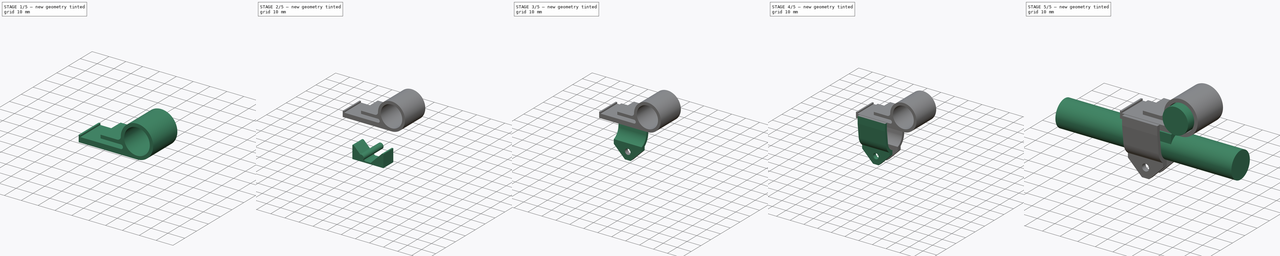
[diagram: build sequence overview — one tinted view per stage of 5, left to right]
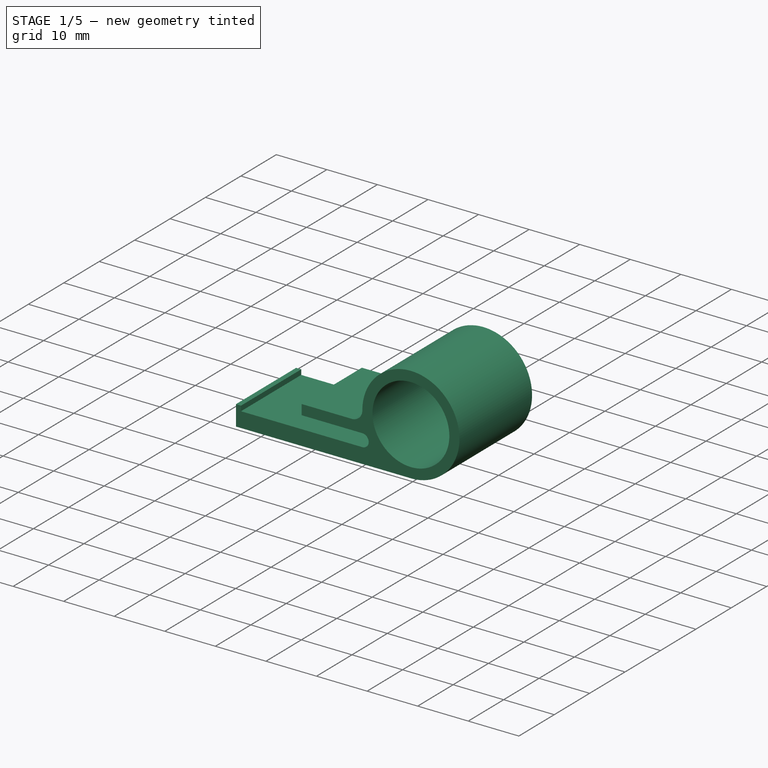
[diagram: stage 1 of 5 — iso view after this stage's code; geometry added in this stage tinted green]
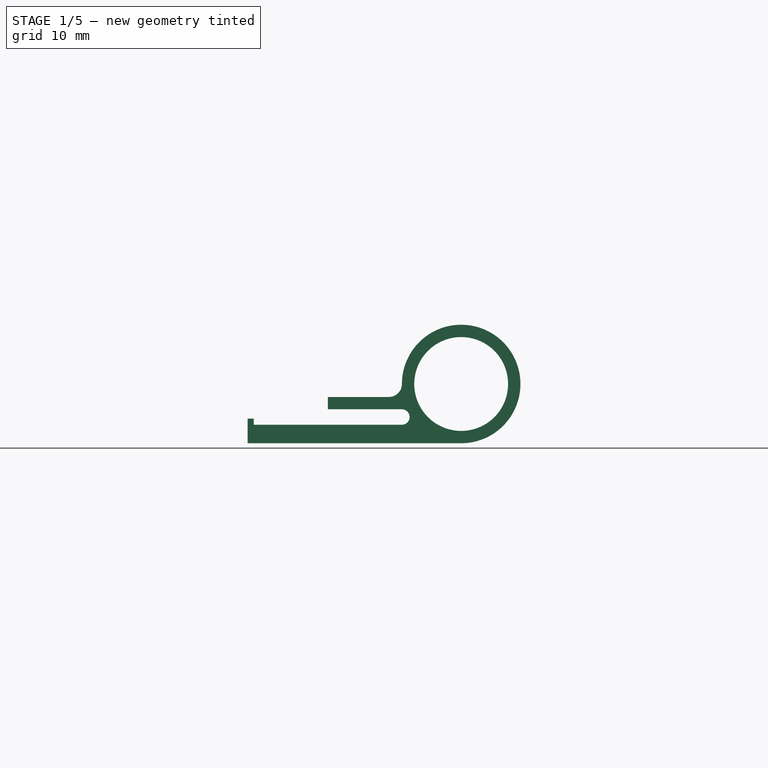
[diagram: stage 1 of 5 — front view after this stage's code; geometry added in this stage tinted green]
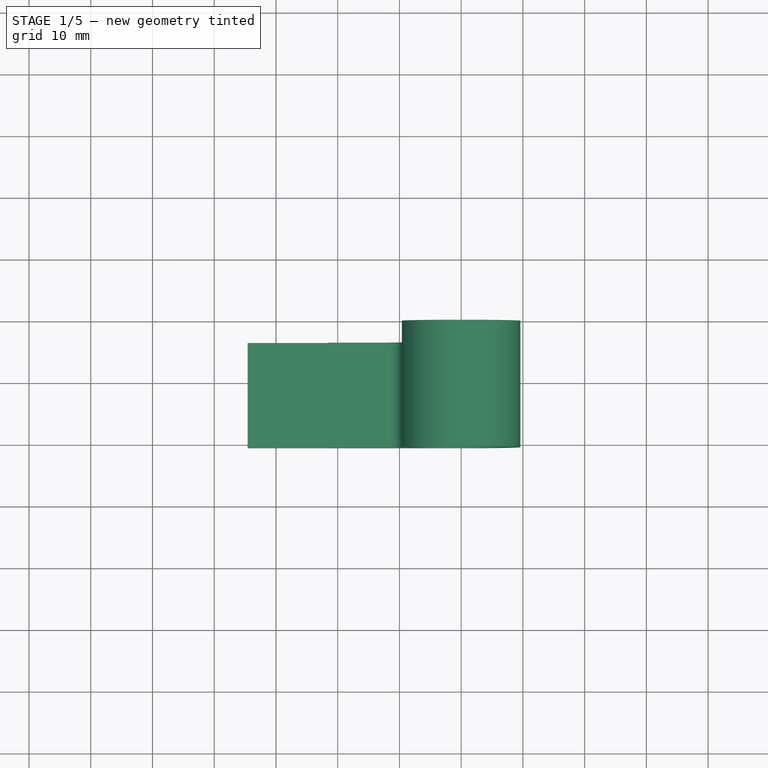
[diagram: stage 1 of 5 — top view after this stage's code; geometry added in this stage tinted green]
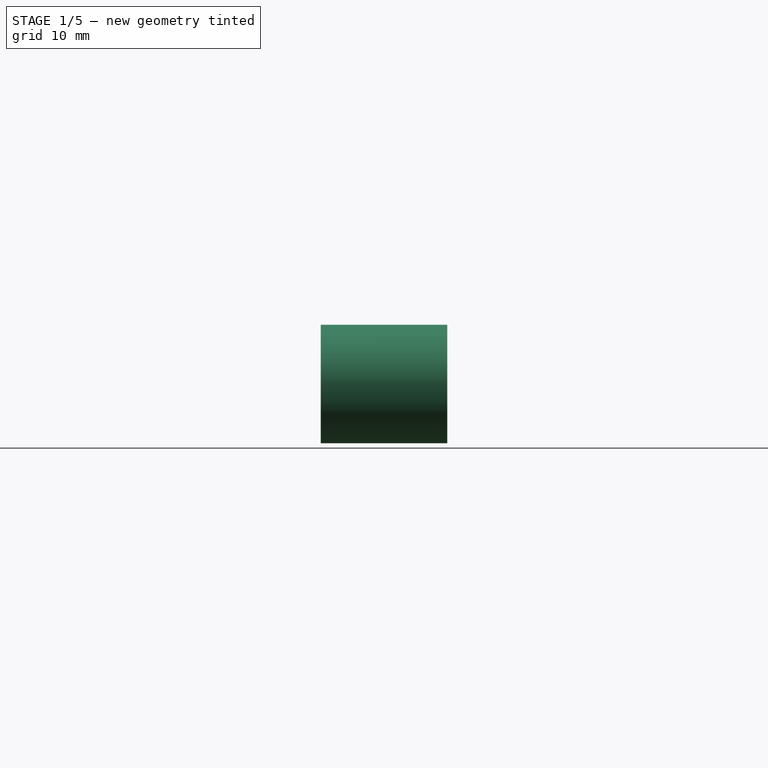
[diagram: stage 1 of 5 — right view after this stage's code; geometry added in this stage tinted green]
FCSTD DOCUMENT  (FreeCAD 0.19R24291 (Git))
Label: cam_bearing2
License: All rights reserved
LicenseURL: http://en.wikipedia.org/wiki/All_rights_reserved
objects: Sketcher::SketchObject×6, Part::Extrusion×6, Part::Cylinder×4, Part::Cut×2, Part::Compound×2, Part::Thickness×1, Part::MultiFuse×1, PartDesign::FeatureBase×1, PartDesign::Body×1, Part::Mirroring×1, Spreadsheet::Sheet×1
note: 25 computed .brp shape members not serialized (recipe doc carries the construction recipe); baked Part::Feature solids carry a one-line shape summary decoded from their .brp

FEATURE [Sketcher::SketchObject] Sketch001
  FullyConstrained = true
  Placement = pos=(0,-25,0) rot=(1,0,0;1.5708rad)
  expr: Constraints[38] = Spreadsheet.thickness
  expr: Constraints[37] = Spreadsheet.thickness
  expr: Constraints[9] = Spreadsheet.bearing_r
  sketch-geometry (13):
    g0: ArcOfCircle CenterX=0 CenterY=0 CenterZ=0 NormalX=0 NormalY=0 NormalZ=1 AngleXU=0 Radius=7.6 StartAngle=3.14159 EndAngle=4.71239
    g1: LineSegment StartX=-1.4e-15 StartY=-7.6 StartZ=0 EndX=-1.4e-15 EndY=-9.6 EndZ=0
    g2: LineSegment StartX=-1.4e-15 StartY=-9.6 StartZ=0 EndX=-34.6 EndY=-9.6 EndZ=0
    g3: LineSegment StartX=-34.6 StartY=-9.6 StartZ=0 EndX=-34.6 EndY=-5.6 EndZ=0
    g4: LineSegment StartX=-33.6 StartY=-6.6 StartZ=0 EndX=-33.6 EndY=-5.6 EndZ=0
    g5: LineSegment StartX=-33.6 StartY=-5.6 StartZ=0 EndX=-34.6 EndY=-5.6 EndZ=0
    g6: LineSegment StartX=-33.6 StartY=-6.6 StartZ=0 EndX=-9.6 EndY=-6.6 EndZ=0
    g7: ArcOfCircle CenterX=-9.6 CenterY=-5.35 CenterZ=0 NormalX=0 NormalY=0 NormalZ=1 AngleXU=0 Radius=1.25 StartAngle=4.71239 EndAngle=7.85398
    g8: LineSegment StartX=-9.6 StartY=-4.1 StartZ=0 EndX=-21.6 EndY=-4.1 EndZ=0
    g9: LineSegment StartX=-21.6 StartY=-4.1 StartZ=0 EndX=-21.6 EndY=-2.1 EndZ=0
    g10: LineSegment StartX=-21.6 StartY=-2.1 StartZ=0 EndX=-11.7 EndY=-2.1 EndZ=0
    g11: ArcOfCircle CenterX=-11.7 CenterY=0 CenterZ=0 NormalX=0 NormalY=0 NormalZ=1 AngleXU=0 Radius=2.1 StartAngle=4.71239 EndAngle=6.28319
    g12: LineSegment StartX=-9.6 StartY=-5e-16 StartZ=0 EndX=-7.6 EndY=-5e-16 EndZ=0
  constraints (41):
    c: Coincident(g0,g-1)
    c: PointOnObject(g0,g-2)
    c: Vertical(g1)
    c: Coincident(g2,g1)
    c: Horizontal(g2)
    c: Coincident(g3,g2)
    c: Vertical(g3)
    c: DistanceY(g3,g2) = -4
    c: Coincident(g0,g1)
    c: Radius(g0) = 7.6
    c: Horizontal(g6)
    c: Coincident(g4,g5)
    c: Coincident(g5,g3)
    c: Horizontal(g5)
    c: Coincident(g4,g6)
    c: DistanceY(g4,g4) = 1
    c: DistanceX(g3,g4) = 1
    c: Vertical(g4,g4)
    c: Coincident(g7,g6)
    c: Horizontal(g8)
    c: Coincident(g9,g8)
    c: Vertical(g9)
    c: DistanceY(g8,g9) = 2
    c: DistanceY(g6,g8) = 2.5
    c: Coincident(g8,g7)
    c: Coincident(g10,g9)
    c: Horizontal(g10)
    c: Vertical(g7,g7)
    c: Vertical(g7,g6)
    c: PointOnObject(g11,g-1)
    c: PointOnObject(g11,g-1)
    c: Coincident(g10,g11)
    c: Coincident(g12,g11)
    c: Coincident(g12,g0)
    c: Horizontal(g12)
    c: DistanceX(g8,g8) = 12
    c: Vertical(g10,g11)
    c: DistanceX(g12,g12) = 2
    c: DistanceY(g1,g1) = 2
    c: Vertical(g7,g11)
    c: DistanceX(g4,g7) = 24
FEATURE [Part::Extrusion] Extrude
  Base = -> Sketch001
  Dir = (0,-1,2e-16)
  DirMode = 2
  FaceMakerClass = Part::FaceMakerBullseye
  LengthFwd = 0
  LengthRev = 17
  Placement = pos=(0,4.5,0) rot=(0,0,1;0rad)
  Solid = true
  Symmetric = false
FEATURE [Sketcher::SketchObject] Sketch020
  FullyConstrained = true
  Placement = pos=(-6,0,0) rot=(0.57735,-0.57735,-0.57735;2.0944rad)
  sketch-geometry (4):
    g0: LineSegment StartX=19.5 StartY=-10.1 StartZ=0 EndX=19.5 EndY=-9.1 EndZ=0
    g1: LineSegment StartX=19.5 StartY=-9.1 StartZ=0 EndX=5 EndY=-9.1 EndZ=0
    g2: LineSegment StartX=5 StartY=-9.1 StartZ=0 EndX=4 EndY=-10.1 EndZ=0
    g3: LineSegment StartX=4 StartY=-10.1 StartZ=0 EndX=19.5 EndY=-10.1 EndZ=0
  constraints (12):
    c: Coincident(g0,g1)
    c: Horizontal(g1)
    c: Coincident(g1,g2)
    c: Coincident(g2,g3)
    c: Coincident(g3,g0)
    c: Horizontal(g3)
    c: DistanceY(g0,g0) = -1
    c: DistanceX(g2,g1) = 1
    c: Vertical(g0)
    c: DistanceX(g1,g1) = 14.5
    c: DistanceX(g0) = 19.5
    c: DistanceY(g1) = -9.1
FEATURE [Part::Extrusion] Extrude015
  Base = -> Sketch020
  Dir = (-1,0,0)
  DirMode = 2
  FaceMakerClass = Part::FaceMakerBullseye
  LengthFwd = 27.5
  LengthRev = 0
  Solid = true
  Symmetric = false
FEATURE [Part::Cut] Cut006
  Base = -> Extrude
  Tool = -> Extrude015
FEATURE [Spreadsheet::Sheet] Spreadsheet
  cells = A1=cf_radius; B1(cf_radius)=7.25; A2=bearing_r; B2(bearing_r)=7.6; C2=8.6; A3=thickness; B3(thickness)=2
FEATURE [Sketcher::SketchObject] Sketch
  FullyConstrained = true
  Placement = pos=(0,0,0) rot=(-1,0,0;4.71239rad)
  expr: Constraints[3] = Spreadsheet.bearing_r + Spreadsheet.thickness
  expr: Constraints[2] = Spreadsheet.bearing_r
  sketch-geometry (2):
    g0: Circle CenterX=0 CenterY=0 CenterZ=0 NormalX=0 NormalY=0 NormalZ=1 AngleXU=0 Radius=7.6
    g1: Circle CenterX=0 CenterY=0 CenterZ=0 NormalX=0 NormalY=0 NormalZ=1 AngleXU=0 Radius=9.6
  constraints (4):
    c: Coincident(g0,g-1)
    c: Coincident(g1,g0)
    c: Radius(g0) = 7.6
    c: Radius(g1) = 9.6
FEATURE [Part::Extrusion] Extrude016
  Base = -> Sketch
  Dir = (0,-1,3e-16)
  DirMode = 2
  FaceMakerClass = Part::FaceMakerBullseye
  LengthFwd = 20.5
  LengthRev = 0
  Solid = true
  Symmetric = false
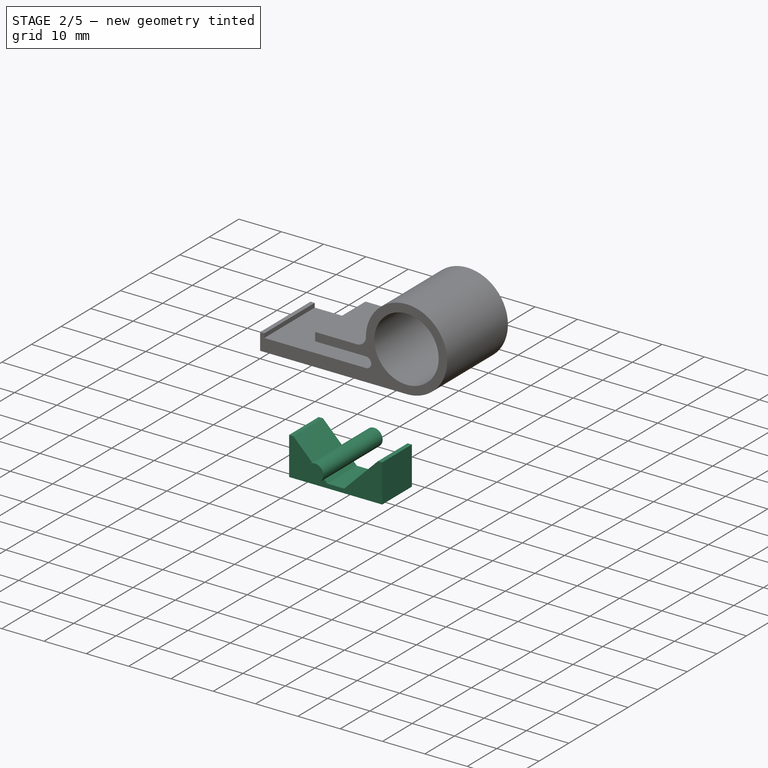
[diagram: stage 2 of 5 — iso view after this stage's code; geometry added in this stage tinted green]
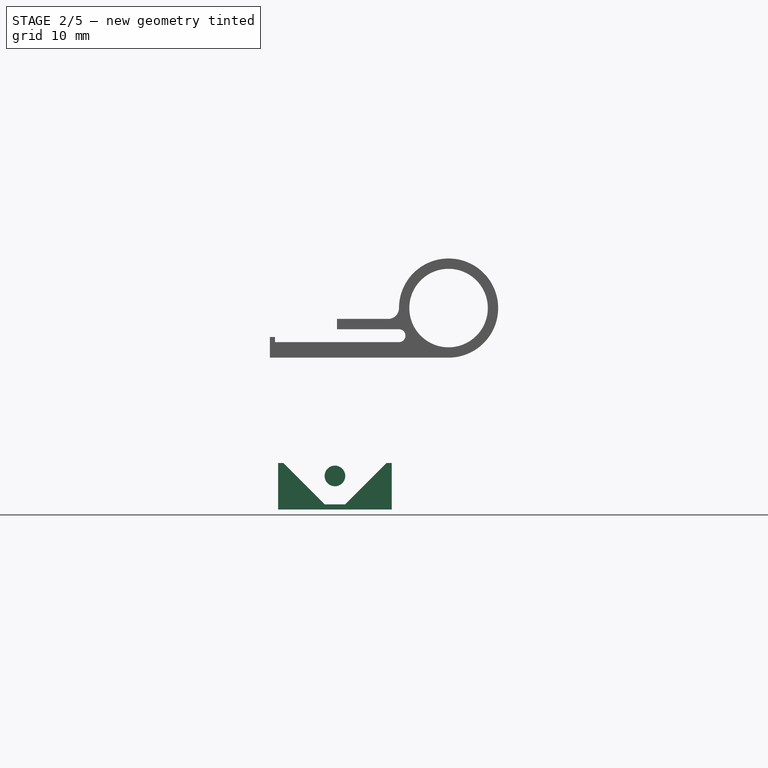
[diagram: stage 2 of 5 — front view after this stage's code; geometry added in this stage tinted green]
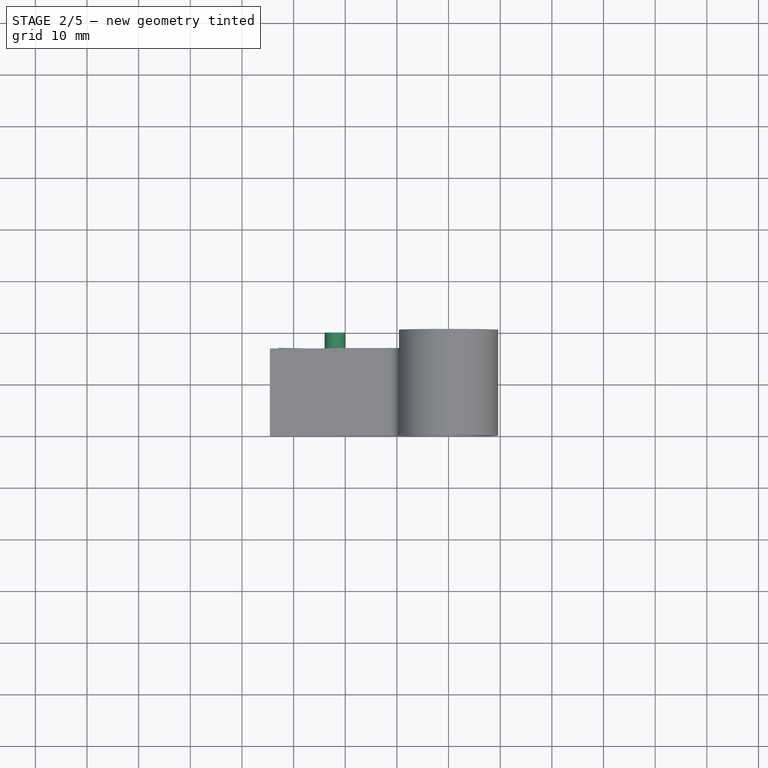
[diagram: stage 2 of 5 — top view after this stage's code; geometry added in this stage tinted green]
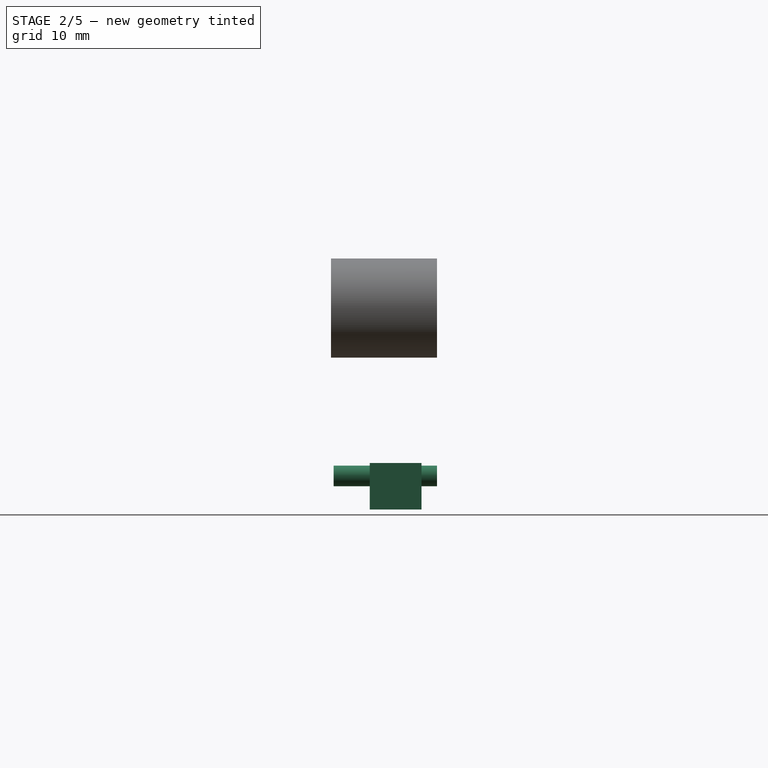
[diagram: stage 2 of 5 — right view after this stage's code; geometry added in this stage tinted green]
FEATURE [Part::Cylinder] Cylinder024  label="bolt"
  Angle = 360
  AttacherType = Attacher::AttachEngine3D
  Height = 20
  Placement = pos=(-22,0,-32.5) rot=(1,0,0;1.5708rad)
  Radius = 2
FEATURE [Sketcher::SketchObject] Sketch006
  FullyConstrained = false
  Placement = pos=(0,20,0) rot=(0,0.707107,0.707107;3.14159rad)
  sketch-geometry (8):
    g0: LineSegment StartX=24 StartY=-38 StartZ=0 EndX=32 EndY=-30 EndZ=0
    g1: LineSegment StartX=32 StartY=-30 StartZ=0 EndX=33 EndY=-30 EndZ=0
    g2: LineSegment StartX=33 StartY=-30 StartZ=0 EndX=33 EndY=-39 EndZ=0
    g3: LineSegment StartX=33 StartY=-39 StartZ=0 EndX=11 EndY=-39 EndZ=0
    g4: LineSegment StartX=11 StartY=-39 StartZ=0 EndX=11 EndY=-30 EndZ=0
    g5: LineSegment StartX=11 StartY=-30 StartZ=0 EndX=12 EndY=-30 EndZ=0
    g6: LineSegment StartX=12 StartY=-30 StartZ=0 EndX=20 EndY=-38 EndZ=0
    g7: LineSegment StartX=20 StartY=-38 StartZ=0 EndX=24 EndY=-38 EndZ=0
  constraints (24):
    c: Coincident(g0,g1)
    c: Horizontal(g1)
    c: Coincident(g1,g2)
    c: Vertical(g2)
    c: Coincident(g2,g3)
    c: Horizontal(g3)
    c: Coincident(g3,g4)
    c: Vertical(g4)
    c: Coincident(g4,g5)
    c: Horizontal(g5)
    c: Coincident(g5,g6)
    c: Coincident(g6,g7)
    c: Coincident(g7,g0)
    c: Horizontal(g7)
    c: DistanceX(g0,g0) = 8
    c: DistanceY(g0,g0) = 8
    c: DistanceX(g1) = 33
    c: DistanceY(g1) = -30
    c: DistanceX(g2,g3) = -22
    c: DistanceY(g3,g4) = 9
    c: DistanceX(g4,g5) = 1
    c: DistanceX(g0,g1) = 1
    c: DistanceX(g6,g0) = 4
    c: DistanceY(g6,g5) = 8
FEATURE [Part::Extrusion] Extrude004
  Base = -> Sketch006
  Dir = (1e-16,1,0)
  DirMode = 2
  FaceMakerClass = Part::FaceMakerBullseye
  LengthFwd = 0
  LengthRev = 10
  Placement = pos=(0,-23,0) rot=(0,0,1;0rad)
  Solid = true
  Symmetric = false
FEATURE [Part::Compound] Compound004  label="bearing outer001"
  Links = -> [Cut006,Extrude016]
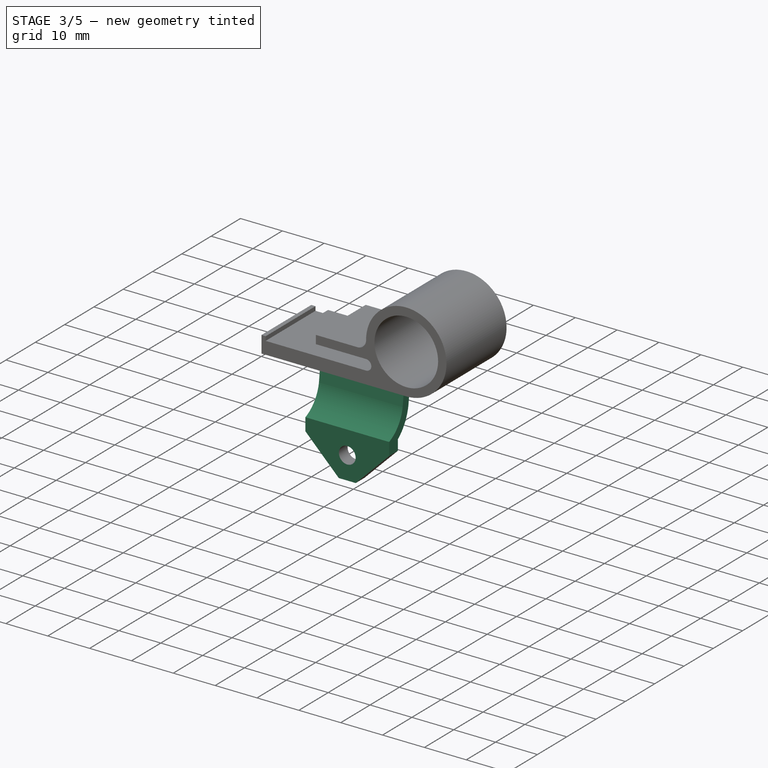
[diagram: stage 3 of 5 — iso view after this stage's code; geometry added in this stage tinted green]
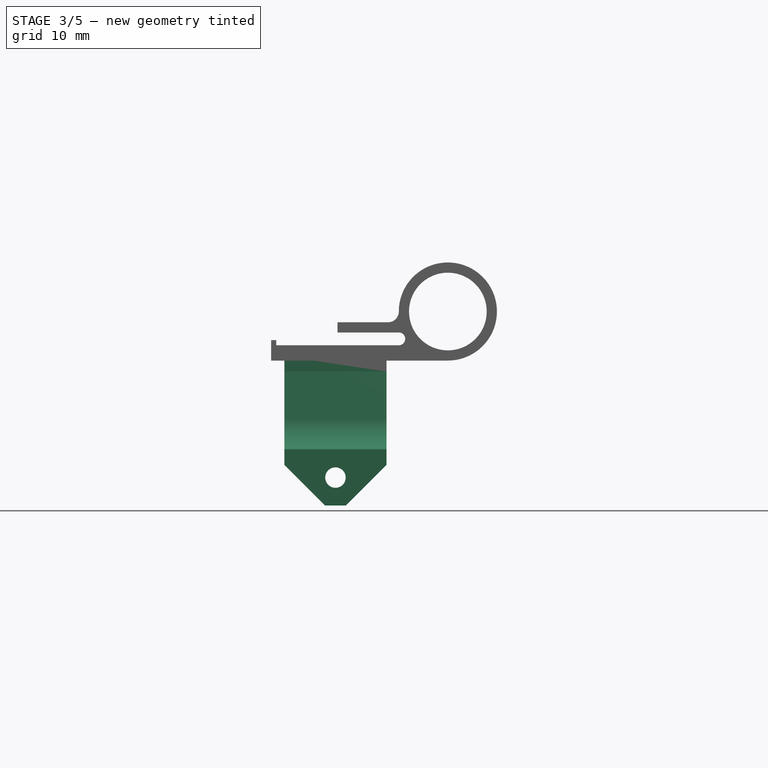
[diagram: stage 3 of 5 — front view after this stage's code; geometry added in this stage tinted green]
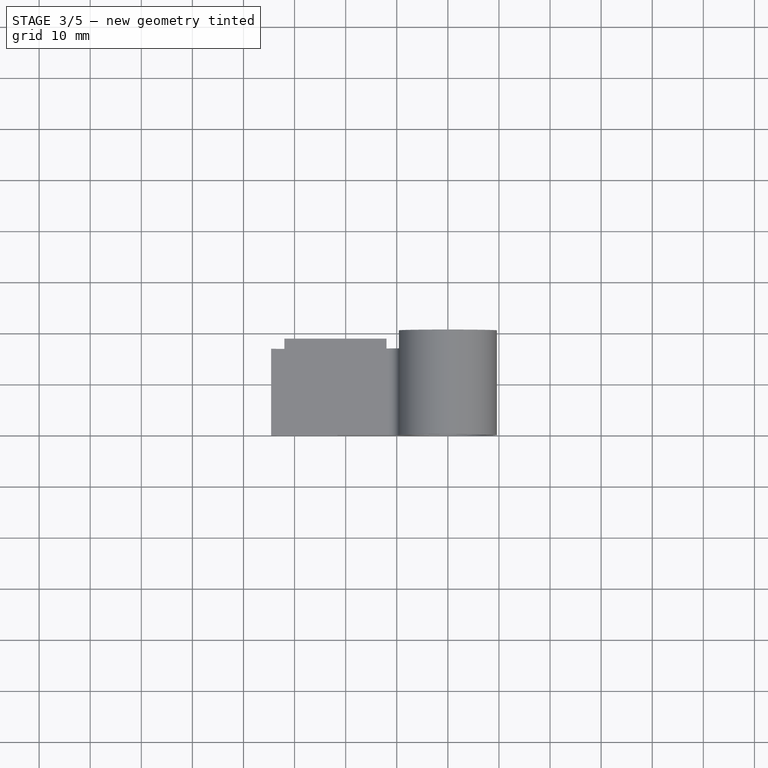
[diagram: stage 3 of 5 — top view after this stage's code; geometry added in this stage tinted green]
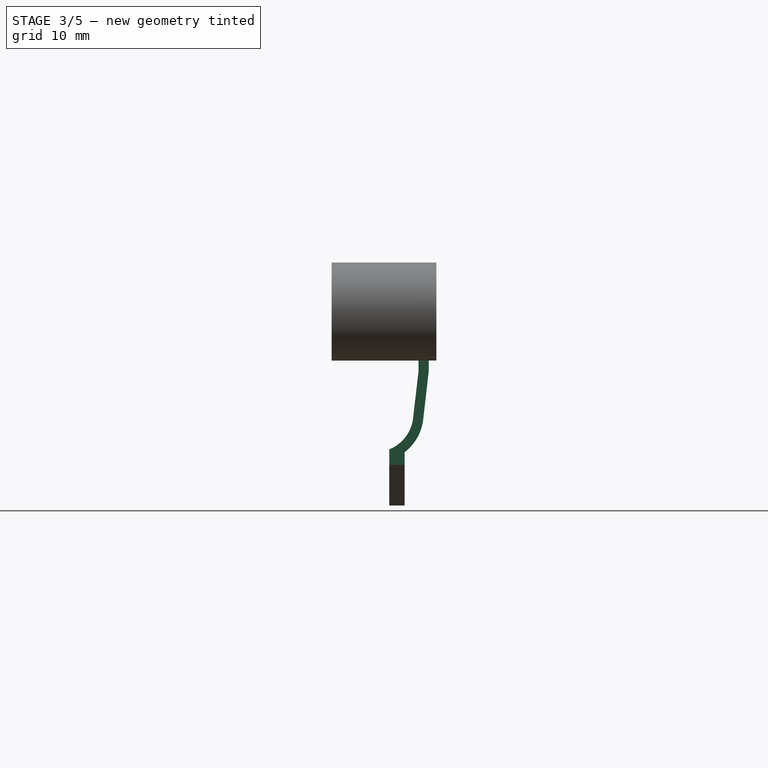
[diagram: stage 3 of 5 — right view after this stage's code; geometry added in this stage tinted green]
FEATURE [Sketcher::SketchObject] Sketch005
  FullyConstrained = false
  Placement = pos=(-80,0,0) rot=(0.57735,-0.57735,-0.57735;2.0944rad)
  sketch-geometry (12):
    g0: LineSegment StartX=9.22206 StartY=-26.9666 StartZ=0 EndX=9.22206 EndY=-37.9666 EndZ=0
    g1: LineSegment StartX=9.22206 StartY=-37.9666 StartZ=0 EndX=6.22206 EndY=-37.9666 EndZ=0
    g2: LineSegment StartX=6.22206 StartY=-37.9666 StartZ=0 EndX=6.22206 EndY=-27.5409 EndZ=0
    g3: LineSegment StartX=12 StartY=-8.75 StartZ=0 EndX=3.5 EndY=-8.75 EndZ=0
    g4: LineSegment StartX=3.5 StartY=-8.75 StartZ=0 EndX=3.5 EndY=-11.75 EndZ=0
    g5: LineSegment StartX=3.5 StartY=-11.75 StartZ=0 EndX=4.6021 EndY=-21.2333 EndZ=0
    g6: LineSegment StartX=12 StartY=-8.75 StartZ=0 EndX=12 EndY=-6.75 EndZ=0
    g7: LineSegment StartX=12 StartY=-6.75 StartZ=0 EndX=1.5 EndY=-6.75 EndZ=0
    g8: ArcOfCircle CenterX=12 CenterY=-20 CenterZ=0 NormalX=0 NormalY=0 NormalZ=1 AngleXU=0 Radius=7.5 StartAngle=3.30678 EndAngle=4.33296
    g9: LineSegment StartX=1.5 StartY=-6.75 StartZ=0 EndX=1.5 EndY=-11.75 EndZ=0
    g10: LineSegment StartX=1.5 StartY=-11.75 StartZ=0 EndX=2.62933 EndY=-21.5622 EndZ=0
    g11: ArcOfCircle CenterX=12 CenterY=-20 CenterZ=0 NormalX=0 NormalY=0 NormalZ=1 AngleXU=0 Radius=9.5 StartAngle=3.30679 EndAngle=4.05859
  constraints (36):
    c: Vertical(g0)
    c: Coincident(g0,g1)
    c: Horizontal(g1)
    c: Coincident(g1,g2)
    c: Vertical(g2)
    c: Horizontal(g3)
    c: Coincident(g3,g4)
    c: Vertical(g4)
    c: Coincident(g4,g5)
    c: Coincident(g3,g6)
    c: Vertical(g6)
    c: Coincident(g7,g6)
    c: DistanceY(g3,g6) = 2
    c: Horizontal(g7,g6)
    c: DistanceX(g7,g3) = 2
    c: DistanceY(g4,g3) = 3
    c: Coincident(g8,g0)
    c: Coincident(g8,g5)
    c: Radius(g8) = 7.5
    c: DistanceX(g2,g0) = 3
    c: Coincident(g9,g7)
    c: Vertical(g9)
    c: Distance(g4,g9) = 2
    c: Coincident(g10,g9)
    c: Distance(g10,g5) = 2
    c: Coincident(g11,g8)
    c: Coincident(g11,g10)
    c: Coincident(g11,g2)
    c: Radius(g11) = 9.5
    c: DistanceX(g8,g-1) = -12
    c: DistanceY(g8,g-1) = 20
    c: DistanceY(g0,g0) = 11
    c: DistanceX(g5,g8) = 7.3979
    c: DistanceX(g3,g3) = 8.5
    c: DistanceX(g7,g-1) = -1.5
    c: DistanceY(g7,g-1) = 6.75
FEATURE [Part::Extrusion] Extrude003
  Base = -> Sketch005
  Dir = (-1,0,0)
  DirMode = 2
  FaceMakerClass = Part::FaceMakerBullseye
  LengthFwd = 0
  LengthRev = 20
  Placement = pos=(48,0,0) rot=(0,0,1;0rad)
  Solid = true
  Symmetric = false
FEATURE [Part::MultiFuse] Fusion005
  Shapes = -> [Cylinder024,Extrude004]
FEATURE [Part::Cut] Cut004
  Base = -> Extrude003
  Tool = -> Fusion005
FEATURE [PartDesign::FeatureBase] Clone001
  BaseFeature = -> Cut004
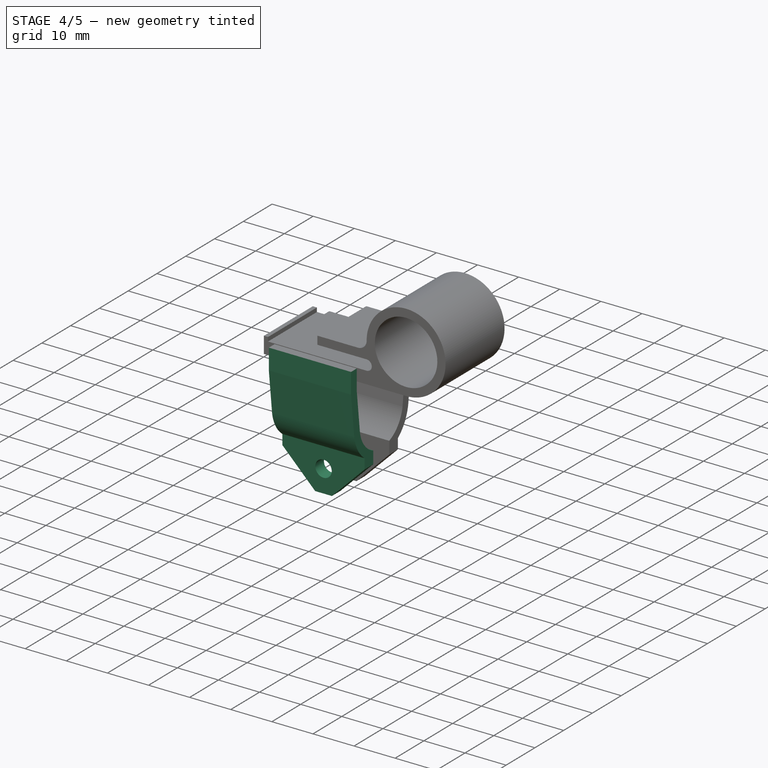
[diagram: stage 4 of 5 — iso view after this stage's code; geometry added in this stage tinted green]
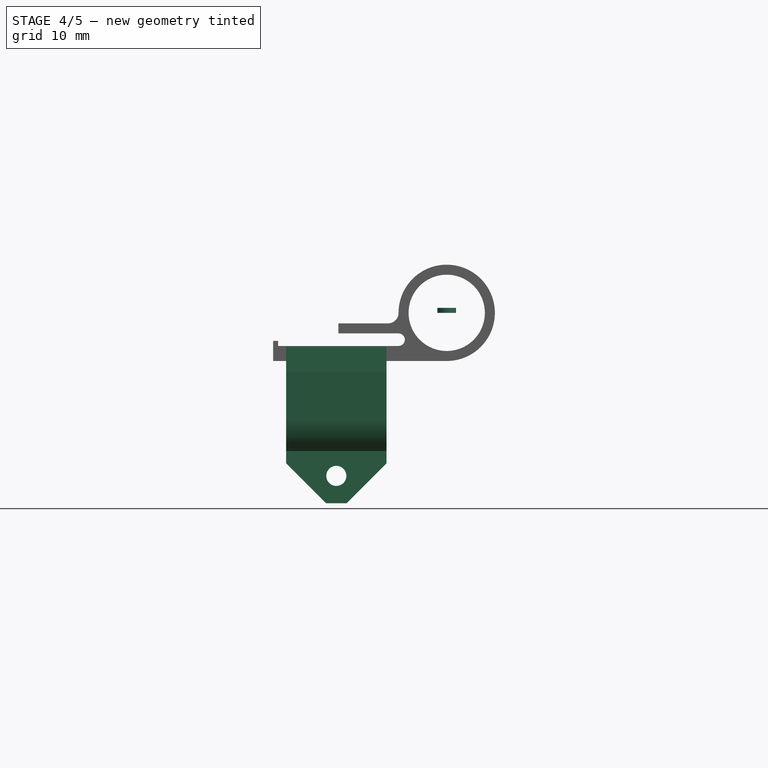
[diagram: stage 4 of 5 — front view after this stage's code; geometry added in this stage tinted green]
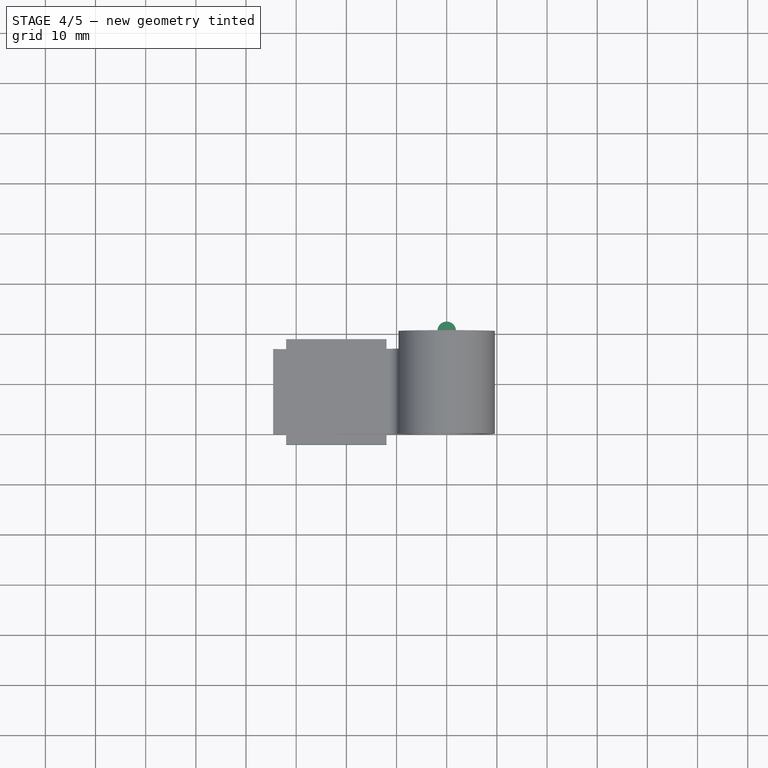
[diagram: stage 4 of 5 — top view after this stage's code; geometry added in this stage tinted green]
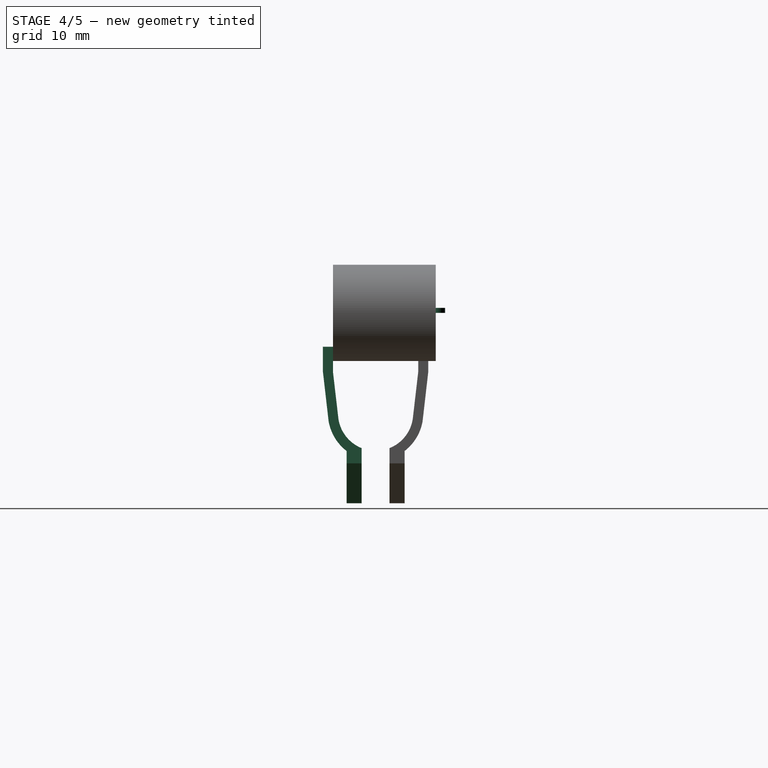
[diagram: stage 4 of 5 — right view after this stage's code; geometry added in this stage tinted green]
FEATURE [Part::Cylinder] Cylinder004  label="washer"
  Angle = 360
  AttacherType = Attacher::AttachEngine3D
  Height = 1
  Radius = 1.85
FEATURE [PartDesign::Body] Body001
  BaseFeature = -> Cut004
  Group = -> [Clone001]
  Origin = -> Origin001
  Tip = -> Clone001
FEATURE [Part::Mirroring] Part__Mirroring001  label="Body001 (Mirror #2)"
  Base = (0,-12,0)
  Normal = (0,1,0)
  Source = -> Body001
FEATURE [Part::Compound] Compound  label="tpu"
  Links = -> [Cut004,Part__Mirroring001]
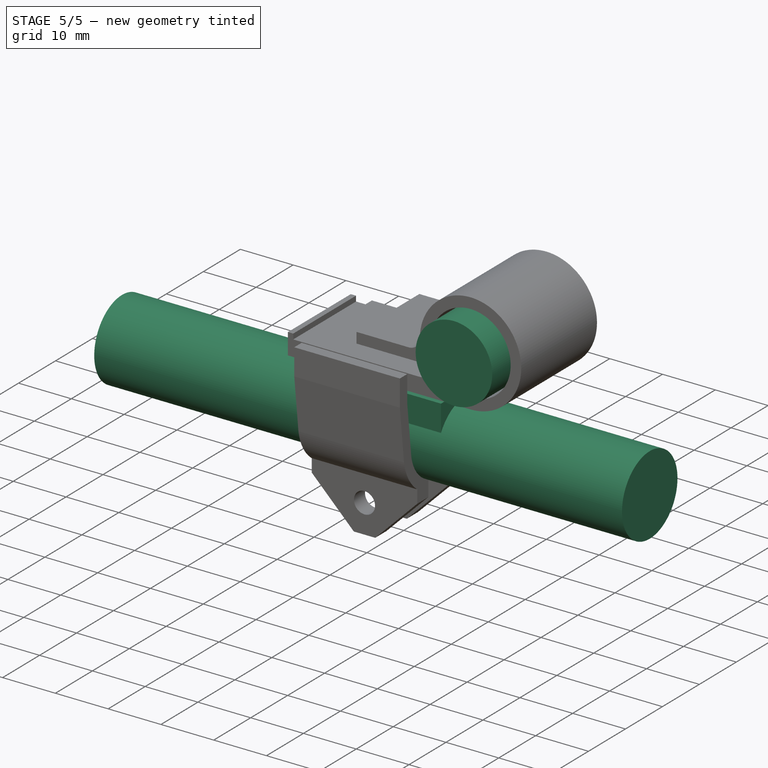
[diagram: stage 5 of 5 — iso view after this stage's code; geometry added in this stage tinted green]
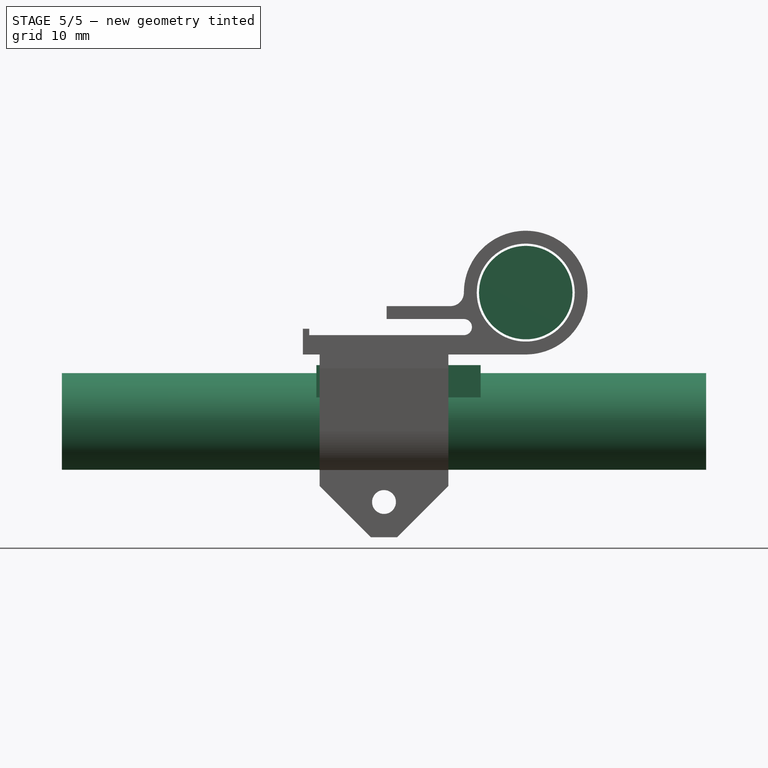
[diagram: stage 5 of 5 — front view after this stage's code; geometry added in this stage tinted green]
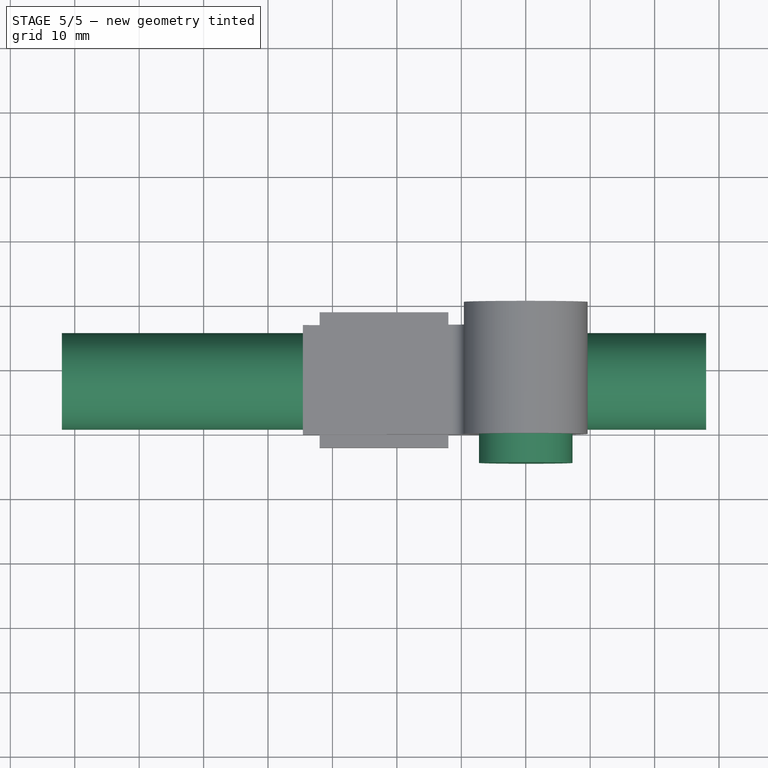
[diagram: stage 5 of 5 — top view after this stage's code; geometry added in this stage tinted green]
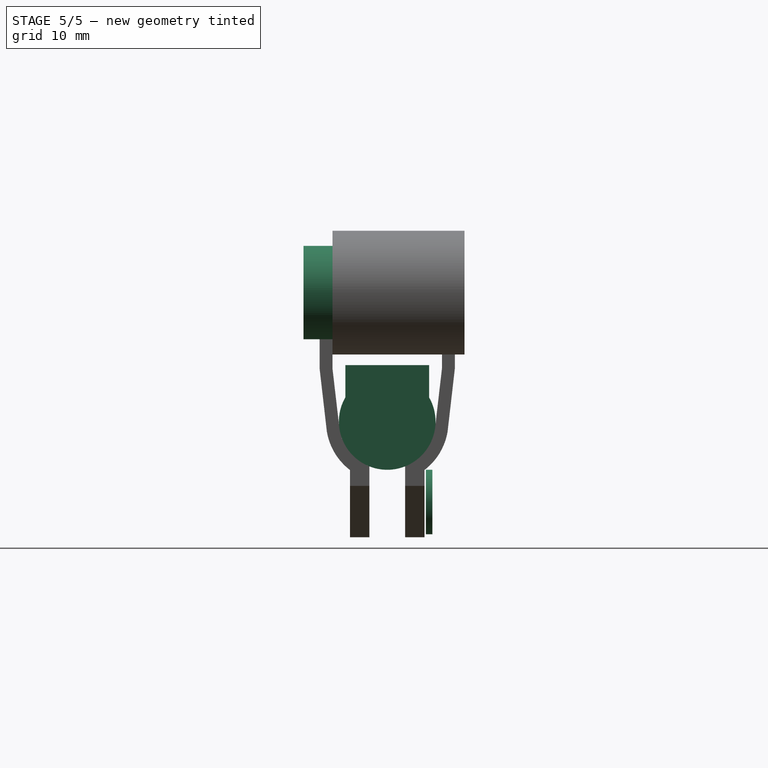
[diagram: stage 5 of 5 — right view after this stage's code; geometry added in this stage tinted green]
FEATURE [Part::Cylinder] Cylinder009  label="cf margin"
  Angle = 360
  AttacherType = Attacher::AttachEngine3D
  Height = 25
  Placement = pos=(0,8e-16,0) rot=(1,0,0;1.5708rad)
  Radius = 7.25
FEATURE [Part::Cylinder] Cylinder023  label="cf rod"
  Angle = 360
  AttacherType = Attacher::AttachEngine3D
  Height = 100
  Placement = pos=(28,-12,-20) rot=(0,-1,0;1.5708rad)
  Radius = 7.5
FEATURE [Sketcher::SketchObject] Sketch003
  FullyConstrained = false
  Placement = pos=(-80,0,0) rot=(0.57735,-0.57735,-0.57735;2.0944rad)
  sketch-geometry (4):
    g0: ArcOfCircle CenterX=12 CenterY=-20 CenterZ=0 NormalX=0 NormalY=0 NormalZ=1 AngleXU=0 Radius=7.5 StartAngle=0.522315 EndAngle=2.61928
    g1: LineSegment StartX=5.5 StartY=-16.2583 StartZ=0 EndX=5.5 EndY=-11.25 EndZ=0
    g2: LineSegment StartX=5.5 StartY=-11.25 StartZ=0 EndX=18.5 EndY=-11.25 EndZ=0
    g3: LineSegment StartX=18.5 StartY=-11.25 StartZ=0 EndX=18.5 EndY=-16.2583 EndZ=0
  constraints (13):
    c: Coincident(g0,g1)
    c: Coincident(g1,g2)
    c: Horizontal(g2)
    c: Coincident(g2,g3)
    c: Coincident(g3,g0)
    c: DistanceX(g1,g-1) = -5.5
    c: DistanceY(g1,g-1) = 11.25
    c: DistanceX(g1,g2) = 13
    c: DistanceX(g0,g-1) = -12
    c: DistanceY(g0,g-1) = 20
    c: Radius(g0) = 7.5
    c: Horizontal(g0,g0)
    c: Vertical(g0,g1)
FEATURE [Part::Extrusion] Extrude001  label="tpu001"
  Base = -> Sketch003
  Dir = (-1,2e-16,-2e-16)
  DirMode = 2
  FaceMakerClass = Part::FaceMakerBullseye
  LengthFwd = 0
  LengthRev = 25.5
  Placement = pos=(47.5,0,0) rot=(0,0,1;0rad)
  Solid = true
  Symmetric = false
FEATURE [Part::Thickness] Thickness007  label="washer001"
  Faces = -> Cylinder004 [Face3,Face2]
  Intersection = false
  Join = 0
  Mode = 0
  Placement = pos=(-22,-6,-32.5) rot=(0.57735,-0.57735,-0.57735;4.18879rad)
  SelfIntersection = false
  Value = 3.15
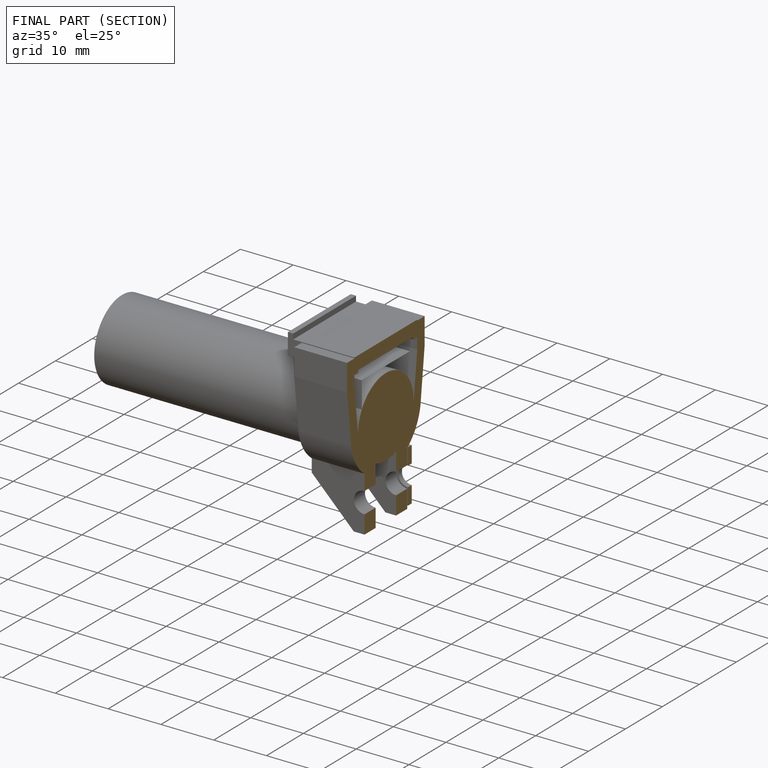
[diagram: finished part — half-section view (interior)]
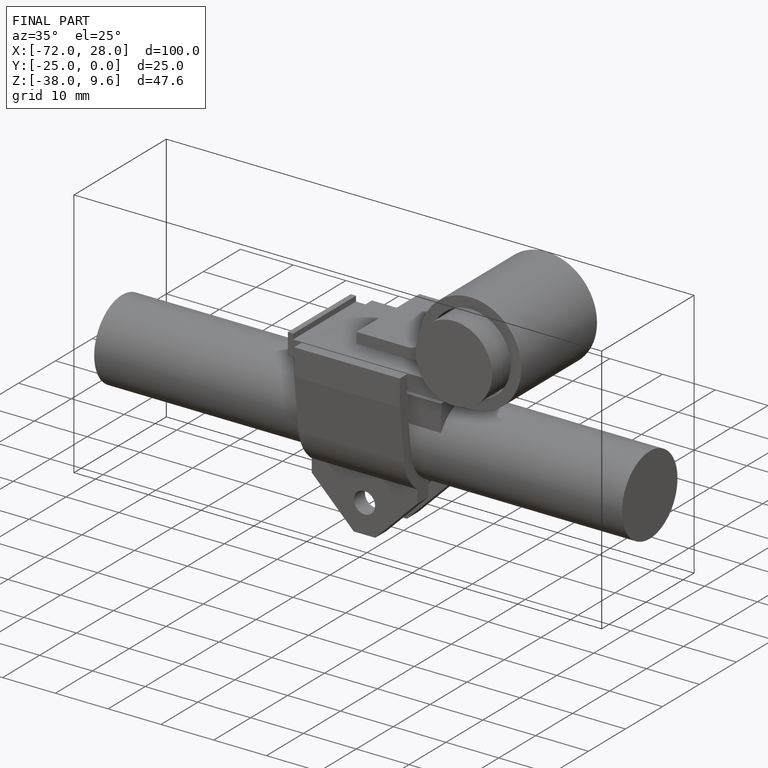
[diagram: finished part — iso view with bounding-box wireframe]
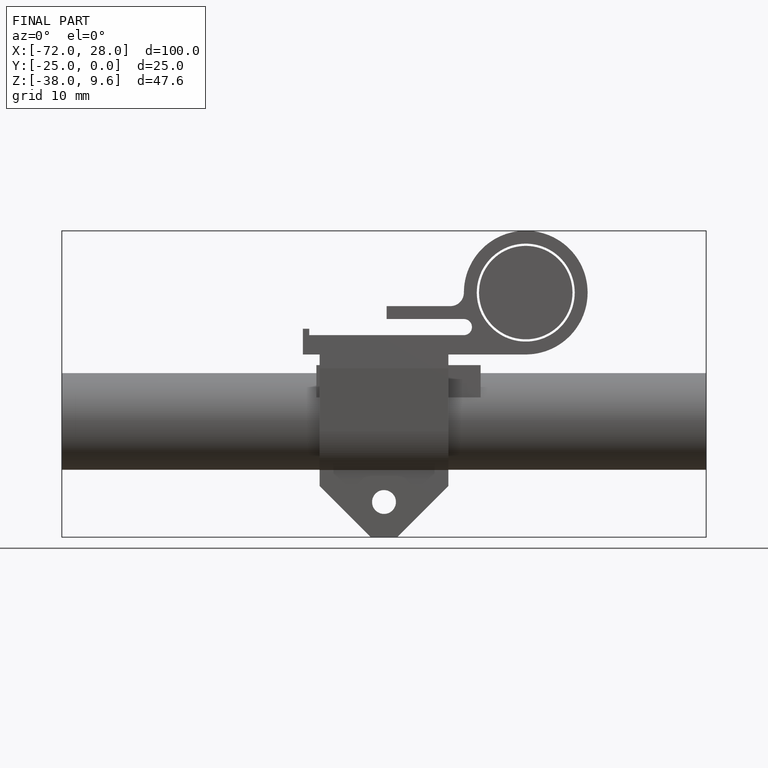
[diagram: finished part — front view with bounding-box wireframe]
